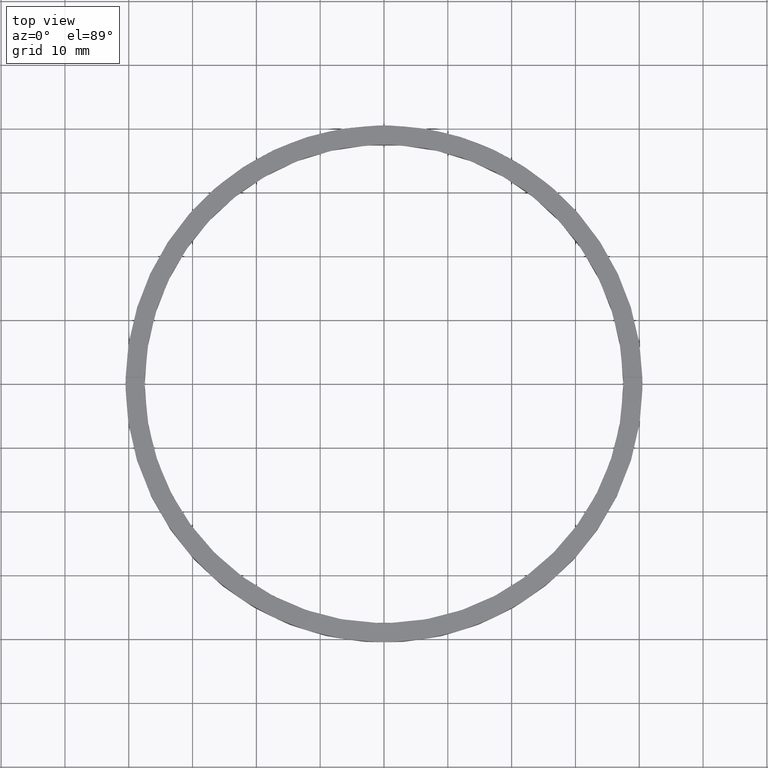
[diagram: clean part render]
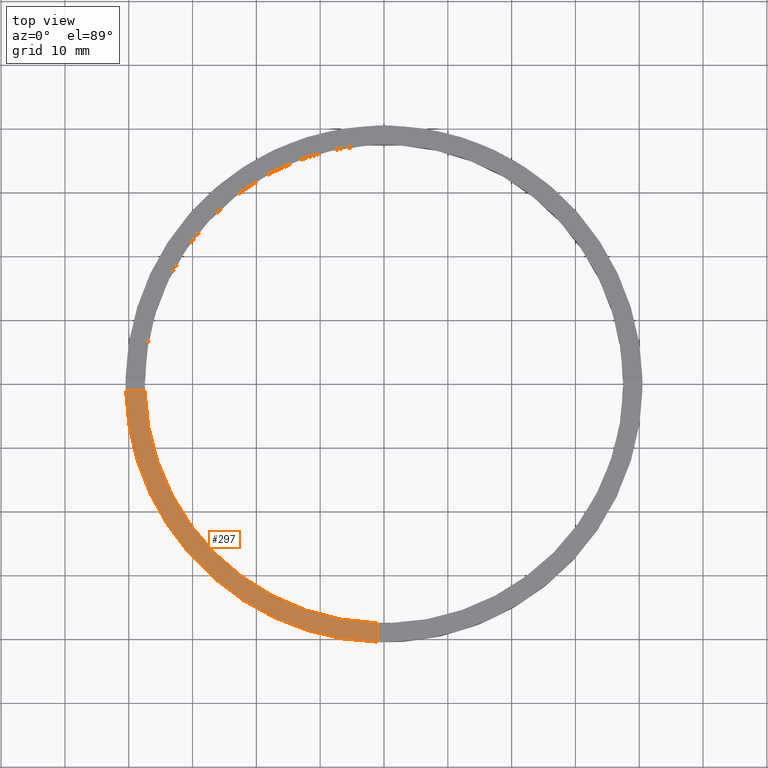
[diagram: same view with one face highlighted and labeled with its STEP entity id]
A machine part, top view. The second image highlights one B-rep face of the part: STEP entity #297.
In plain terms, the highlighted planar face has unit normal (0, 0, 1).
Its self-contained STEP definition (entity closure, byte-faithful):
#28 = CARTESIAN_POINT ( 'NONE',  ( -1.000000000000159650, -37.48666429545312440, 4.000000000000000000 ) ) ;
#38 = EDGE_CURVE ( 'NONE', #730, #688, #637, .T. ) ;
#61 = FACE_OUTER_BOUND ( 'NONE', #631, .T. ) ;
#62 = CIRCLE ( 'NONE', #116, 40.50000000000000000 ) ;
#93 = CIRCLE ( 'NONE', #647, 37.50000000000000711 ) ;
#97 = LINE ( 'NONE', #240, #619 ) ;
#116 = AXIS2_PLACEMENT_3D ( 'NONE', #548, #701, #468 ) ;
#139 = CARTESIAN_POINT ( 'NONE',  ( 0.000000000000000000, 0.000000000000000000, 4.000000000000000000 ) ) ;
#171 = CARTESIAN_POINT ( 'NONE',  ( -37.48666429545312440, -1.000000000000027978, 4.000000000000000000 ) ) ;
#240 = CARTESIAN_POINT ( 'NONE',  ( -30.50000000000018829, -1.000000000000026423, 4.000000000000000000 ) ) ;
#252 = VERTEX_POINT ( 'NONE', #382 ) ;
#288 = DIRECTION ( 'NONE',  ( 1.000000000000000000, 1.951563910473907735E-16, -0.000000000000000000 ) ) ;
#297 = ADVANCED_FACE ( 'NONE', ( #61 ), #596, .T. ) ;
#299 = CARTESIAN_POINT ( 'NONE',  ( -1.000000000000160538, -30.50000000000018119, 4.000000000000000000 ) ) ;
#382 = CARTESIAN_POINT ( 'NONE',  ( -40.48765243873741326, -1.000000000000028422, 4.000000000000000000 ) ) ;
#389 = VECTOR ( 'NONE', #675, 1000.000000000000000 ) ;
#408 = ORIENTED_EDGE ( 'NONE', *, *, #38, .F. ) ;
#422 = EDGE_CURVE ( 'NONE', #668, #730, #93, .T. ) ;
#446 = DIRECTION ( 'NONE',  ( 0.000000000000000000, 0.000000000000000000, 1.000000000000000000 ) ) ;
#465 = EDGE_CURVE ( 'NONE', #252, #668, #97, .T. ) ;
#468 = DIRECTION ( 'NONE',  ( 1.000000000000000000, 0.000000000000000000, 0.000000000000000000 ) ) ;
#480 = ORIENTED_EDGE ( 'NONE', *, *, #422, .F. ) ;
#500 = ORIENTED_EDGE ( 'NONE', *, *, #599, .T. ) ;
#526 = DIRECTION ( 'NONE',  ( 1.000000000000000000, 0.000000000000000000, -0.000000000000000000 ) ) ;
#548 = CARTESIAN_POINT ( 'NONE',  ( 0.000000000000000000, 0.000000000000000000, 4.000000000000000000 ) ) ;
#590 = AXIS2_PLACEMENT_3D ( 'NONE', #709, #446, #526 ) ;
#596 = PLANE ( 'NONE',  #590 ) ;
#599 = EDGE_CURVE ( 'NONE', #252, #688, #62, .T. ) ;
#619 = VECTOR ( 'NONE', #288, 1000.000000000000000 ) ;
#620 = DIRECTION ( 'NONE',  ( 1.000000000000000000, 0.000000000000000000, 0.000000000000000000 ) ) ;
#631 = EDGE_LOOP ( 'NONE', ( #408, #480, #685, #500 ) ) ;
#637 = LINE ( 'NONE', #299, #389 ) ;
#647 = AXIS2_PLACEMENT_3D ( 'NONE', #139, #681, #620 ) ;
#668 = VERTEX_POINT ( 'NONE', #171 ) ;
#675 = DIRECTION ( 'NONE',  ( 1.301042606982605074E-16, -1.000000000000000000, 0.000000000000000000 ) ) ;
#681 = DIRECTION ( 'NONE',  ( 0.000000000000000000, 0.000000000000000000, 1.000000000000000000 ) ) ;
#685 = ORIENTED_EDGE ( 'NONE', *, *, #465, .F. ) ;
#688 = VERTEX_POINT ( 'NONE', #771 ) ;
#701 = DIRECTION ( 'NONE',  ( 0.000000000000000000, 0.000000000000000000, 1.000000000000000000 ) ) ;
#709 = CARTESIAN_POINT ( 'NONE',  ( 0.000000000000000000, 0.000000000000000000, 4.000000000000000000 ) ) ;
#730 = VERTEX_POINT ( 'NONE', #28 ) ;
#771 = CARTESIAN_POINT ( 'NONE',  ( -1.000000000000159206, -40.48765243873741326, 4.000000000000000000 ) ) ;